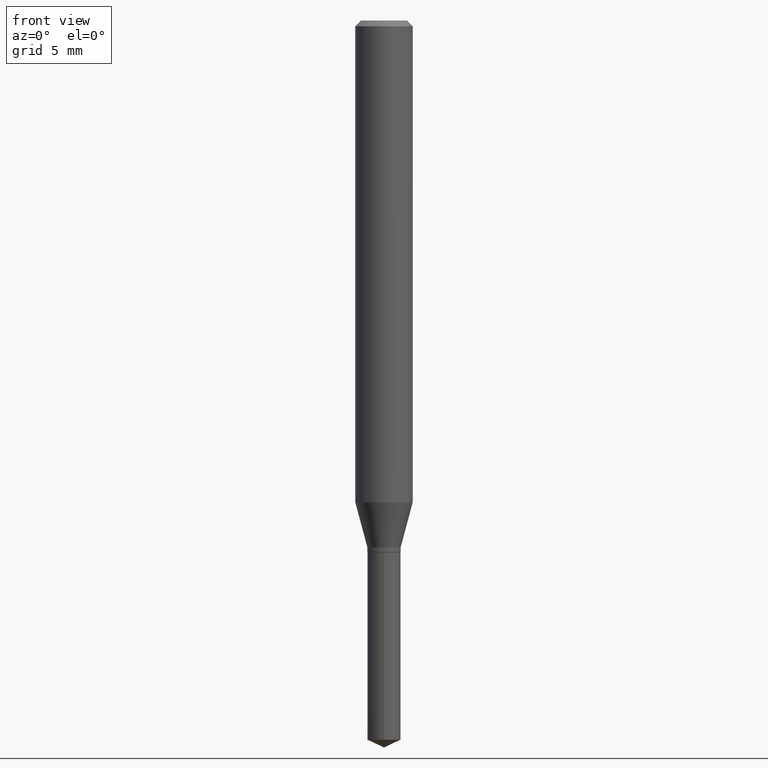
[diagram: clean part render]
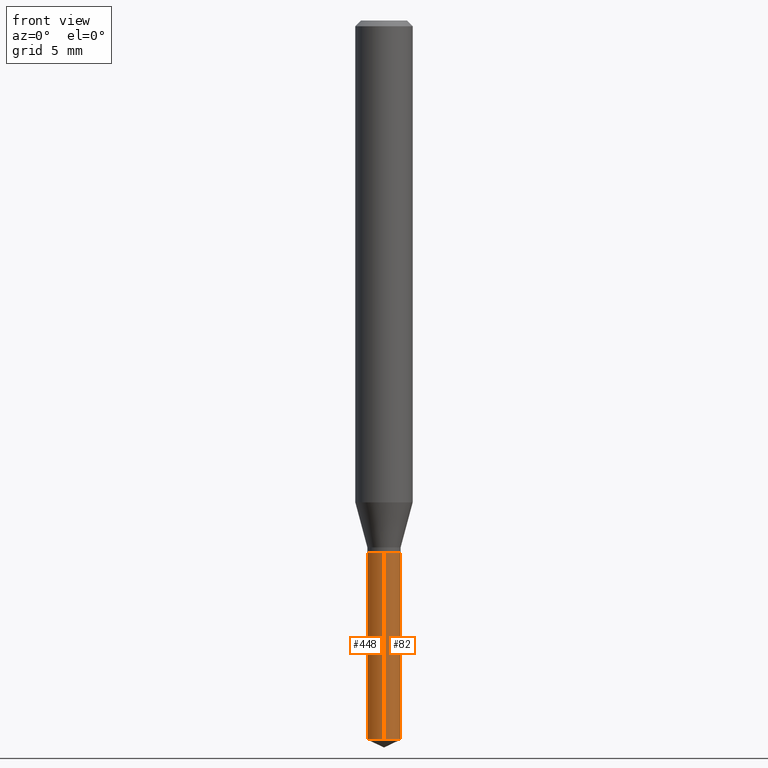
[diagram: same view with one multi-face feature highlighted, each face labeled with its STEP entity id]
A machine part, front view. The highlighted faces form ONE feature: a constant-radius fillet chain: 2 tangent blend faces with common blend radius 0.87 mm. The faces share edges in the B-rep.
Their STEP definitions:
[1] entity #82 (Cylinder):
#6 = CARTESIAN_POINT ( 'NONE',  ( 2.676565608369631794E-29, -3.821426325363822773E-15, -1.094499999999999806 ) ) ;
#7 = CARTESIAN_POINT ( 'NONE',  ( -2.391664717107278944E-16, -0.03425000000000382600, -1.094499999999999806 ) ) ;
#20 = DIRECTION ( 'NONE',  ( -6.982962677686265922E-15, -1.000000000000000000, 3.988099260823741568E-15 ) ) ;
#33 = CYLINDRICAL_SURFACE ( 'NONE', #422, 0.03425000000000000266 ) ;
#36 = LINE ( 'NONE', #7, #339 ) ;
#37 = EDGE_LOOP ( 'NONE', ( #387, #283, #163, #473 ) ) ;
#49 = DIRECTION ( 'NONE',  ( -2.445470214571802396E-29, 3.491479321953280158E-15, 1.000000000000000000 ) ) ;
#59 = CARTESIAN_POINT ( 'NONE',  ( -2.391664717107278944E-16, -0.03425000000000382600, -1.094499999999999806 ) ) ;
#82 = ADVANCED_FACE ( 'NONE', ( #356 ), #33, .T. ) ;
#84 = CIRCLE ( 'NONE', #465, 0.03425000000000000266 ) ;
#90 = CARTESIAN_POINT ( 'NONE',  ( 2.433608869978610553E-16, 0.03424999999999618627, -1.094500000000000028 ) ) ;
#92 = AXIS2_PLACEMENT_3D ( 'NONE', #212, #371, #20 ) ;
#133 = VERTEX_POINT ( 'NONE', #59 ) ;
#139 = CARTESIAN_POINT ( 'NONE',  ( 3.619609750548734277E-29, -5.167841874605765612E-15, -1.480128962708191276 ) ) ;
#149 = DIRECTION ( 'NONE',  ( -2.445470214571802396E-29, 3.491479321953280158E-15, 1.000000000000000000 ) ) ;
#160 = DIRECTION ( 'NONE',  ( -2.445470214571802116E-29, 3.491479321953280158E-15, 1.000000000000000000 ) ) ;
#163 = ORIENTED_EDGE ( 'NONE', *, *, #467, .F. ) ;
#180 = VECTOR ( 'NONE', #49, 39.37007874015748143 ) ;
#203 = VERTEX_POINT ( 'NONE', #402 ) ;
#212 = CARTESIAN_POINT ( 'NONE',  ( 2.676565608369631794E-29, -3.821426325363822773E-15, -1.094499999999999806 ) ) ;
#213 = EDGE_CURVE ( 'NONE', #203, #248, #363, .T. ) ;
#248 = VERTEX_POINT ( 'NONE', #414 ) ;
#269 = DIRECTION ( 'NONE',  ( -6.982962677686265922E-15, -1.000000000000000000, 0.000000000000000000 ) ) ;
#278 = VERTEX_POINT ( 'NONE', #451 ) ;
#283 = ORIENTED_EDGE ( 'NONE', *, *, #213, .T. ) ;
#314 = EDGE_CURVE ( 'NONE', #278, #203, #84, .T. ) ;
#339 = VECTOR ( 'NONE', #149, 39.37007874015748143 ) ;
#347 = CIRCLE ( 'NONE', #92, 0.03425000000000000266 ) ;
#356 = FACE_OUTER_BOUND ( 'NONE', #37, .T. ) ;
#363 = LINE ( 'NONE', #90, #180 ) ;
#371 = DIRECTION ( 'NONE',  ( -2.445470214571802116E-29, 3.491479321953280158E-15, 1.000000000000000000 ) ) ;
#386 = EDGE_CURVE ( 'NONE', #278, #133, #36, .T. ) ;
#387 = ORIENTED_EDGE ( 'NONE', *, *, #314, .T. ) ;
#402 = CARTESIAN_POINT ( 'NONE',  ( 2.433608869978704230E-16, 0.03424999999999481931, -1.480128962708191276 ) ) ;
#414 = CARTESIAN_POINT ( 'NONE',  ( 2.433608869978706202E-16, 0.03424999999999618627, -1.094500000000000028 ) ) ;
#422 = AXIS2_PLACEMENT_3D ( 'NONE', #6, #160, #479 ) ;
#451 = CARTESIAN_POINT ( 'NONE',  ( -2.391664717107183788E-16, -0.03425000000000515826, -1.480128962708191276 ) ) ;
#454 = DIRECTION ( 'NONE',  ( -2.445470214571802116E-29, 3.491479321953280158E-15, 1.000000000000000000 ) ) ;
#465 = AXIS2_PLACEMENT_3D ( 'NONE', #139, #454, #269 ) ;
#467 = EDGE_CURVE ( 'NONE', #133, #248, #347, .T. ) ;
#473 = ORIENTED_EDGE ( 'NONE', *, *, #386, .F. ) ;
#479 = DIRECTION ( 'NONE',  ( -6.982962677686265922E-15, -1.000000000000000000, 3.988099260823741568E-15 ) ) ;
[2] entity #448 (Cylinder):
#7 = CARTESIAN_POINT ( 'NONE',  ( -2.391664717107278944E-16, -0.03425000000000382600, -1.094499999999999806 ) ) ;
#23 = CARTESIAN_POINT ( 'NONE',  ( 3.619609750548734277E-29, -5.167841874605765612E-15, -1.480128962708191276 ) ) ;
#36 = LINE ( 'NONE', #7, #339 ) ;
#45 = DIRECTION ( 'NONE',  ( -6.982962677686265922E-15, -1.000000000000000000, 3.988099260823741568E-15 ) ) ;
#49 = DIRECTION ( 'NONE',  ( -2.445470214571802396E-29, 3.491479321953280158E-15, 1.000000000000000000 ) ) ;
#53 = CIRCLE ( 'NONE', #358, 0.03425000000000000266 ) ;
#54 = AXIS2_PLACEMENT_3D ( 'NONE', #221, #135, #45 ) ;
#59 = CARTESIAN_POINT ( 'NONE',  ( -2.391664717107278944E-16, -0.03425000000000382600, -1.094499999999999806 ) ) ;
#90 = CARTESIAN_POINT ( 'NONE',  ( 2.433608869978610553E-16, 0.03424999999999618627, -1.094500000000000028 ) ) ;
#100 = ORIENTED_EDGE ( 'NONE', *, *, #386, .T. ) ;
#133 = VERTEX_POINT ( 'NONE', #59 ) ;
#135 = DIRECTION ( 'NONE',  ( -2.445470214571802116E-29, 3.491479321953280158E-15, 1.000000000000000000 ) ) ;
#149 = DIRECTION ( 'NONE',  ( -2.445470214571802396E-29, 3.491479321953280158E-15, 1.000000000000000000 ) ) ;
#158 = FACE_OUTER_BOUND ( 'NONE', #464, .T. ) ;
#161 = ORIENTED_EDGE ( 'NONE', *, *, #198, .T. ) ;
#180 = VECTOR ( 'NONE', #49, 39.37007874015748143 ) ;
#198 = EDGE_CURVE ( 'NONE', #203, #278, #53, .T. ) ;
#201 = ORIENTED_EDGE ( 'NONE', *, *, #447, .F. ) ;
#203 = VERTEX_POINT ( 'NONE', #402 ) ;
#204 = CARTESIAN_POINT ( 'NONE',  ( 2.676565608369631794E-29, -3.821426325363822773E-15, -1.094499999999999806 ) ) ;
#210 = DIRECTION ( 'NONE',  ( -2.445470214571802116E-29, 3.491479321953280158E-15, 1.000000000000000000 ) ) ;
#213 = EDGE_CURVE ( 'NONE', #203, #248, #363, .T. ) ;
#221 = CARTESIAN_POINT ( 'NONE',  ( 2.676565608369631794E-29, -3.821426325363822773E-15, -1.094499999999999806 ) ) ;
#248 = VERTEX_POINT ( 'NONE', #414 ) ;
#278 = VERTEX_POINT ( 'NONE', #451 ) ;
#331 = DIRECTION ( 'NONE',  ( -2.445470214571802116E-29, 3.491479321953280158E-15, 1.000000000000000000 ) ) ;
#332 = DIRECTION ( 'NONE',  ( -6.982962677686265922E-15, -1.000000000000000000, 0.000000000000000000 ) ) ;
#339 = VECTOR ( 'NONE', #149, 39.37007874015748143 ) ;
#358 = AXIS2_PLACEMENT_3D ( 'NONE', #23, #210, #332 ) ;
#363 = LINE ( 'NONE', #90, #180 ) ;
#367 = AXIS2_PLACEMENT_3D ( 'NONE', #204, #331, #470 ) ;
#386 = EDGE_CURVE ( 'NONE', #278, #133, #36, .T. ) ;
#399 = CIRCLE ( 'NONE', #54, 0.03425000000000000266 ) ;
#402 = CARTESIAN_POINT ( 'NONE',  ( 2.433608869978704230E-16, 0.03424999999999481931, -1.480128962708191276 ) ) ;
#414 = CARTESIAN_POINT ( 'NONE',  ( 2.433608869978706202E-16, 0.03424999999999618627, -1.094500000000000028 ) ) ;
#426 = ORIENTED_EDGE ( 'NONE', *, *, #213, .F. ) ;
#444 = CYLINDRICAL_SURFACE ( 'NONE', #367, 0.03425000000000000266 ) ;
#447 = EDGE_CURVE ( 'NONE', #248, #133, #399, .T. ) ;
#448 = ADVANCED_FACE ( 'NONE', ( #158 ), #444, .T. ) ;
#451 = CARTESIAN_POINT ( 'NONE',  ( -2.391664717107183788E-16, -0.03425000000000515826, -1.480128962708191276 ) ) ;
#464 = EDGE_LOOP ( 'NONE', ( #426, #161, #100, #201 ) ) ;
#470 = DIRECTION ( 'NONE',  ( -6.982962677686265922E-15, -1.000000000000000000, 3.988099260823741568E-15 ) ) ;